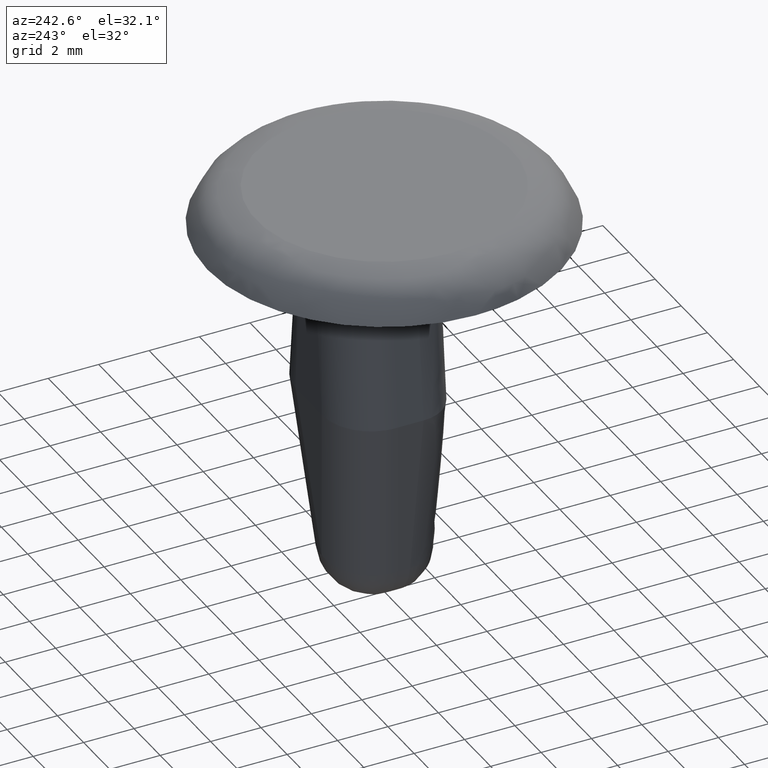
[diagram: clean part render]
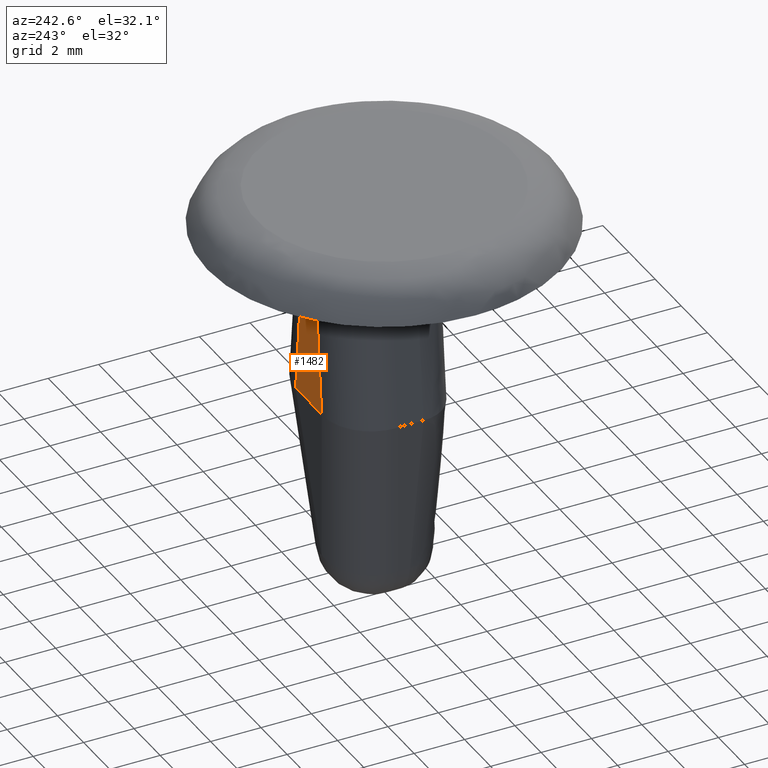
[diagram: same view with one face highlighted and labeled with its STEP entity id]
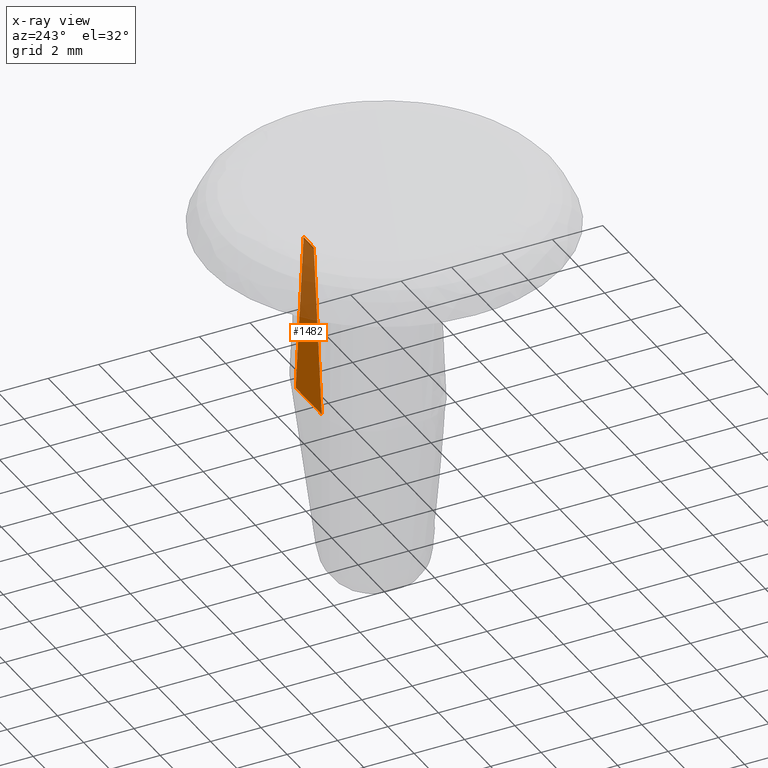
[diagram: x-ray of the same camera — body ghosted, the highlighted face saturated]
A machine part, auxiliary view. The second image highlights one B-rep face of the part: STEP entity #1482.
The next image is the same camera in x-ray: the body ghosted, the highlighted face saturated — about 37% of this face is hidden behind the body in this view.
In plain terms, the highlighted face is a freeform B-spline surface patch.
Its self-contained STEP definition (entity closure, byte-faithful):
#932=CARTESIAN_POINT('',(-0.391753584729145,3.0,0.0));
#933=VERTEX_POINT('',#932);
#949=CARTESIAN_POINT('',(-0.991752584729166,3.0,-6.600006000000090));
#950=VERTEX_POINT('',#949);
#951=CARTESIAN_POINT('',(-0.991752584729166,3.0,-6.600006000000090));
#952=CARTESIAN_POINT('',(-0.391753584729145,3.0,0.0));
#953=QUASI_UNIFORM_CURVE('',1,(#951,#952),.UNSPECIFIED.,.F.,.U.);
#954=EDGE_CURVE('',#950,#933,#953,.T.);
#1228=CARTESIAN_POINT('',(0.991753121331151,3.0,-6.600006000000090));
#1229=VERTEX_POINT('',#1228);
#1243=CARTESIAN_POINT('',(0.391750484965234,3.0,0.0));
#1244=VERTEX_POINT('',#1243);
#1245=CARTESIAN_POINT('',(0.391750484965234,3.0,0.0));
#1246=CARTESIAN_POINT('',(0.991753121331151,3.0,-6.600006000000090));
#1247=QUASI_UNIFORM_CURVE('',1,(#1245,#1246),.UNSPECIFIED.,.F.,.U.);
#1248=EDGE_CURVE('',#1244,#1229,#1247,.T.);
#1334=CARTESIAN_POINT('',(-0.991752584729166,3.0,-6.600006000000090));
#1335=CARTESIAN_POINT('',(0.991753121331151,3.0,-6.600006000000090));
#1336=QUASI_UNIFORM_CURVE('',1,(#1334,#1335),.UNSPECIFIED.,.F.,.U.);
#1337=EDGE_CURVE('',#950,#1229,#1336,.T.);
#1402=CARTESIAN_POINT('',(0.391750484965234,3.0,0.0));
#1403=CARTESIAN_POINT('',(-0.391753584729145,3.0,0.0));
#1404=QUASI_UNIFORM_CURVE('',1,(#1402,#1403),.UNSPECIFIED.,.F.,.U.);
#1405=EDGE_CURVE('',#1244,#933,#1404,.T.);
#1471=CARTESIAN_POINT('',(-1.090828672282728,3.0,-6.929676410820272));
#1472=CARTESIAN_POINT('',(1.090829279820404,3.0,-6.929676410820272));
#1473=CARTESIAN_POINT('',(-1.090828672282728,3.0,0.329670469828832));
#1474=CARTESIAN_POINT('',(1.090829279820404,3.0,0.329670469828832));
#1475=B_SPLINE_SURFACE_WITH_KNOTS('',1,1,((#1471,#1473),(#1472,#1474)),.UNSPECIFIED.,.F.,.F.,.U.,(2,2),(2,2),(0.0,2.181657952103132),(0.0,7.259346880649103),.UNSPECIFIED.);
#1476=ORIENTED_EDGE('',*,*,#1337,.F.);
#1477=ORIENTED_EDGE('',*,*,#954,.T.);
#1478=ORIENTED_EDGE('',*,*,#1405,.F.);
#1479=ORIENTED_EDGE('',*,*,#1248,.T.);
#1480=EDGE_LOOP('',(#1476,#1477,#1478,#1479));
#1481=FACE_OUTER_BOUND('',#1480,.T.);
#1482=ADVANCED_FACE('',(#1481),#1475,.F.);